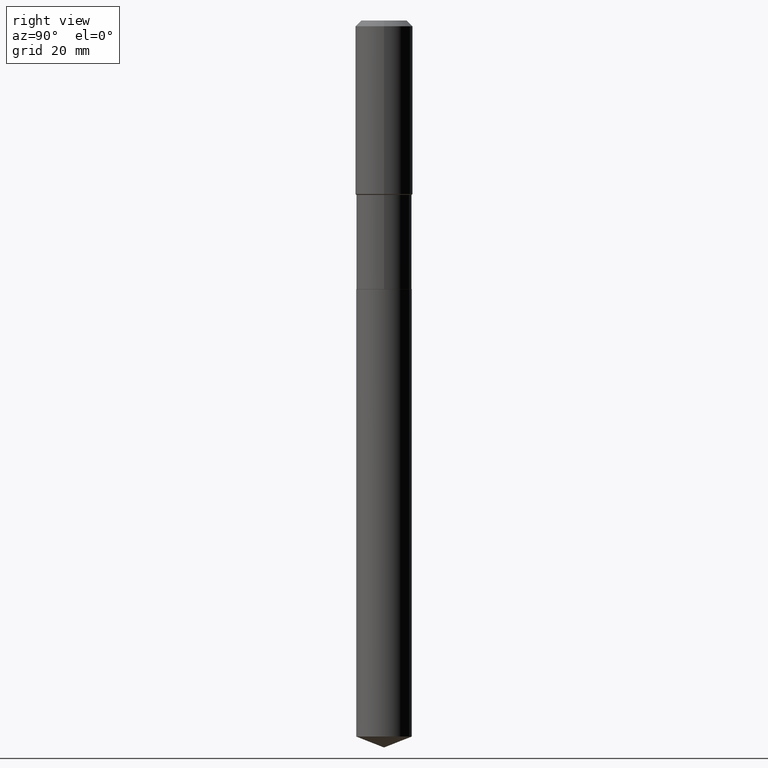
[diagram: clean part render]
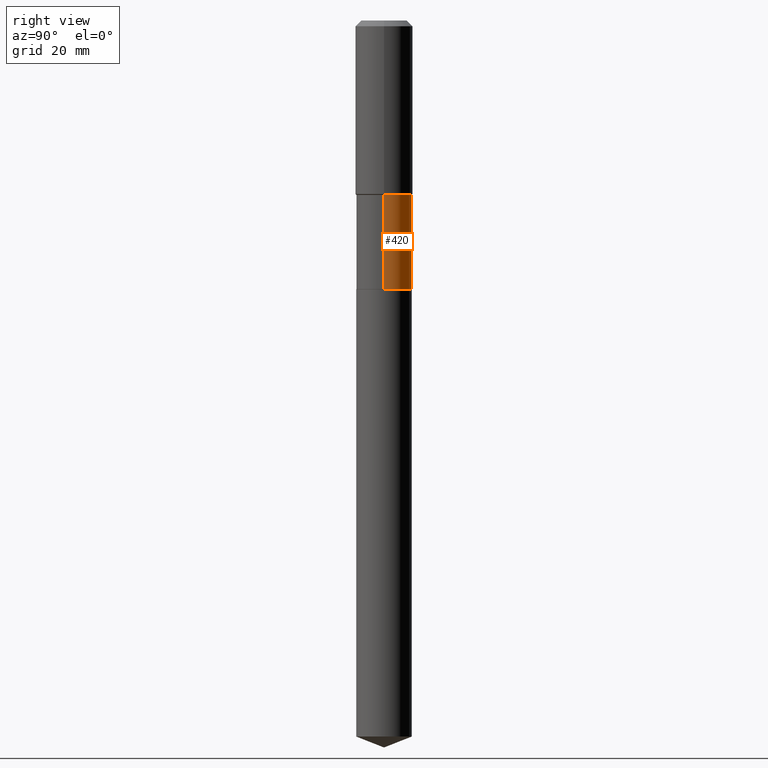
[diagram: same view with one face highlighted and labeled with its STEP entity id]
A machine part, right view. The second image highlights one B-rep face of the part: STEP entity #420.
In plain terms, the highlighted cylindrical surface (edge-blend (fillet) strip) has radius 7.7495 mm, axis along (-0, 0, 1).
Its self-contained STEP definition (entity closure, byte-faithful):
#12 = AXIS2_PLACEMENT_3D ( 'NONE', #182, #300, #450 ) ;
#37 = CIRCLE ( 'NONE', #178, 0.3050999999999999823 ) ;
#68 = CARTESIAN_POINT ( 'NONE',  ( 0.3050999999999998158, -8.821576750721085777E-15, -1.916400000000000325 ) ) ;
#69 = EDGE_CURVE ( 'NONE', #346, #310, #107, .T. ) ;
#76 = ORIENTED_EDGE ( 'NONE', *, *, #146, .F. ) ;
#80 = VECTOR ( 'NONE', #363, 39.37007874015748143 ) ;
#107 = LINE ( 'NONE', #243, #409 ) ;
#134 = CIRCLE ( 'NONE', #416, 0.3050999999999998158 ) ;
#135 = CARTESIAN_POINT ( 'NONE',  ( -0.3050999999999999268, 2.167865886804065147E-15, -1.500767096036771338E-29 ) ) ;
#146 = EDGE_CURVE ( 'NONE', #310, #218, #134, .T. ) ;
#172 = LINE ( 'NONE', #135, #80 ) ;
#178 = AXIS2_PLACEMENT_3D ( 'NONE', #247, #252, #398 ) ;
#182 = CARTESIAN_POINT ( 'NONE',  ( 0.000000000000000000, 0.000000000000000000, 0.000000000000000000 ) ) ;
#218 = VERTEX_POINT ( 'NONE', #326 ) ;
#221 = ORIENTED_EDGE ( 'NONE', *, *, #269, .T. ) ;
#232 = DIRECTION ( 'NONE',  ( -2.445468806185136597E-29, 3.491481338843145583E-15, 1.000000000000000000 ) ) ;
#243 = CARTESIAN_POINT ( 'NONE',  ( 0.3050999999999999268, -2.130501912962079080E-15, 1.487721534295339594E-29 ) ) ;
#247 = CARTESIAN_POINT ( 'NONE',  ( 7.219513009619761960E-29, -1.030755120853273430E-14, -2.952200000000000379 ) ) ;
#252 = DIRECTION ( 'NONE',  ( -2.445468806185136597E-29, 3.491481338843145583E-15, 1.000000000000000000 ) ) ;
#253 = DIRECTION ( 'NONE',  ( -2.445468806185136877E-29, 3.491481338843145188E-15, 1.000000000000000000 ) ) ;
#261 = EDGE_LOOP ( 'NONE', ( #221, #399, #76, #490 ) ) ;
#269 = EDGE_CURVE ( 'NONE', #346, #306, #37, .T. ) ;
#271 = CARTESIAN_POINT ( 'NONE',  ( 4.686496420173196360E-29, -6.691074837759005513E-15, -1.916400000000000325 ) ) ;
#290 = EDGE_CURVE ( 'NONE', #306, #218, #172, .T. ) ;
#295 = FACE_OUTER_BOUND ( 'NONE', #261, .T. ) ;
#300 = DIRECTION ( 'NONE',  ( -2.445468806185136597E-29, 3.491481338843145583E-15, 1.000000000000000000 ) ) ;
#306 = VERTEX_POINT ( 'NONE', #475 ) ;
#310 = VERTEX_POINT ( 'NONE', #68 ) ;
#321 = CARTESIAN_POINT ( 'NONE',  ( 0.3050999999999999823, -1.243805312149481457E-14, -2.952200000000000379 ) ) ;
#326 = CARTESIAN_POINT ( 'NONE',  ( -0.3050999999999998158, -6.331447136341804760E-15, -1.916400000000000325 ) ) ;
#346 = VERTEX_POINT ( 'NONE', #321 ) ;
#363 = DIRECTION ( 'NONE',  ( -2.445468806185136877E-29, 3.491481338843145188E-15, 1.000000000000000000 ) ) ;
#398 = DIRECTION ( 'NONE',  ( 1.000000000000000000, -6.982962677686268288E-15, 0.000000000000000000 ) ) ;
#399 = ORIENTED_EDGE ( 'NONE', *, *, #290, .T. ) ;
#409 = VECTOR ( 'NONE', #253, 39.37007874015748143 ) ;
#415 = CYLINDRICAL_SURFACE ( 'NONE', #12, 0.3050999999999999268 ) ;
#416 = AXIS2_PLACEMENT_3D ( 'NONE', #271, #232, #427 ) ;
#420 = ADVANCED_FACE ( 'NONE', ( #295 ), #415, .T. ) ;
#427 = DIRECTION ( 'NONE',  ( 1.000000000000000000, -6.982962677686269077E-15, 0.000000000000000000 ) ) ;
#450 = DIRECTION ( 'NONE',  ( 1.000000000000000000, -6.982962677686265133E-15, 4.876176775795935793E-29 ) ) ;
#475 = CARTESIAN_POINT ( 'NONE',  ( -0.3050999999999999823, -6.331447136341803971E-15, -2.952200000000000379 ) ) ;
#490 = ORIENTED_EDGE ( 'NONE', *, *, #69, .F. ) ;